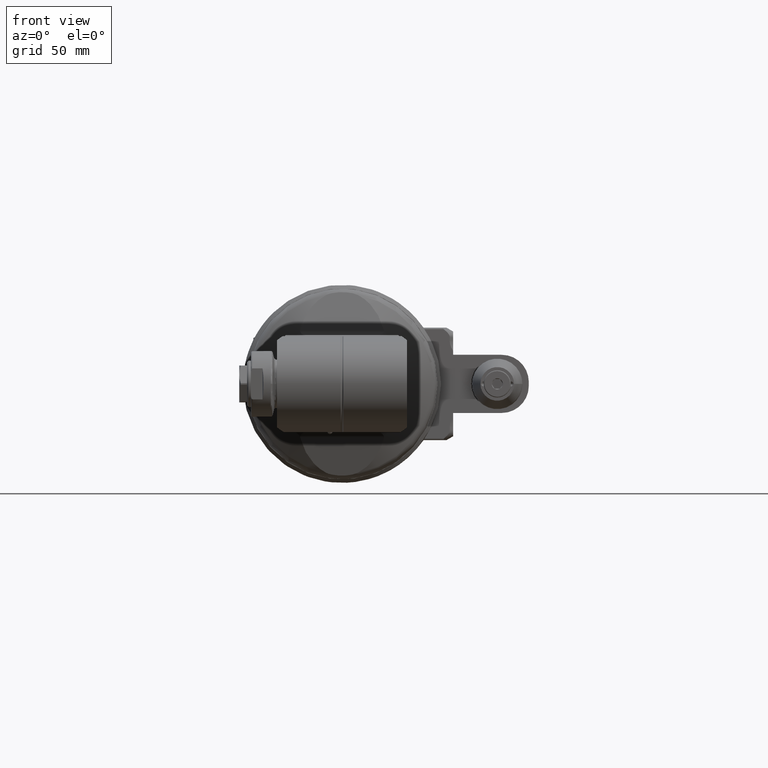
[diagram: clean part render]
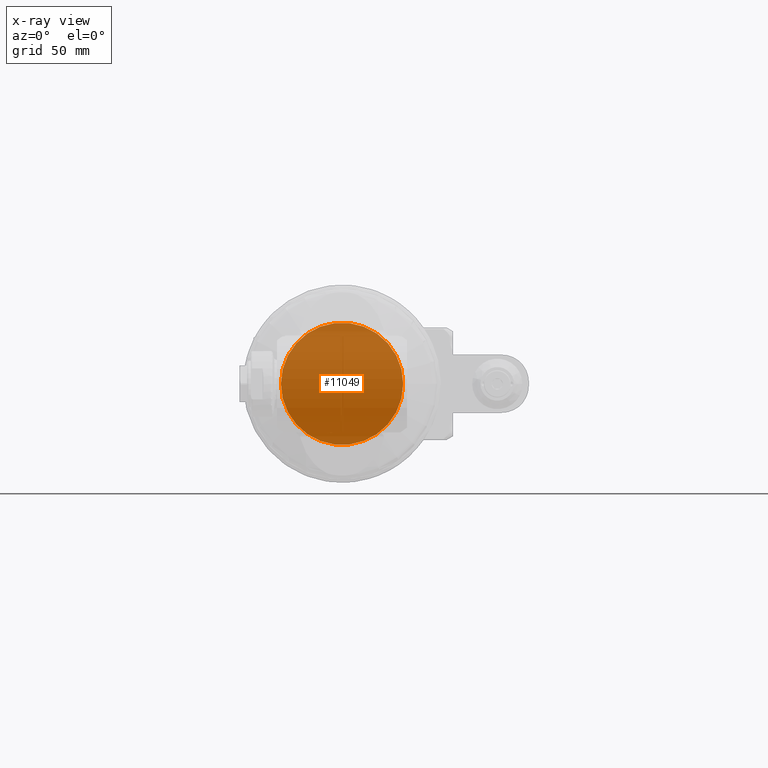
[diagram: x-ray — body ghosted, one internal face saturated and labeled with its STEP entity id]
A machine part, front view, then the same camera in x-ray: the body is ghosted and one INTERNAL B-rep face — a face not visible from any outside direction — is saturated and labeled: STEP entity #11049.
In plain terms, the highlighted planar face has unit normal (0, -1, -0).
Its self-contained STEP definition (entity closure, byte-faithful):
#958=CIRCLE('',#11911,31.5);
#1456=FACE_OUTER_BOUND('',#2108,.T.);
#2108=EDGE_LOOP('',(#8055));
#4660=VERTEX_POINT('',#17012);
#5984=EDGE_CURVE('',#4660,#4660,#958,.T.);
#8055=ORIENTED_EDGE('',*,*,#5984,.T.);
#10651=PLANE('',#11912);
#11049=ADVANCED_FACE('',(#1456),#10651,.F.);
#11911=AXIS2_PLACEMENT_3D('',#17014,#13548,#13549);
#11912=AXIS2_PLACEMENT_3D('',#17015,#13550,#13551);
#13548=DIRECTION('center_axis',(-1.,0.,0.));
#13549=DIRECTION('ref_axis',(0.,-1.,0.));
#13550=DIRECTION('center_axis',(1.,0.,0.));
#13551=DIRECTION('ref_axis',(0.,1.,0.));
#17012=CARTESIAN_POINT('',(-28.0000000000011,31.5000000000019,3.8576374173144E-15));
#17014=CARTESIAN_POINT('Origin',(-28.,0.,0.));
#17015=CARTESIAN_POINT('Origin',(-28.,0.,0.));